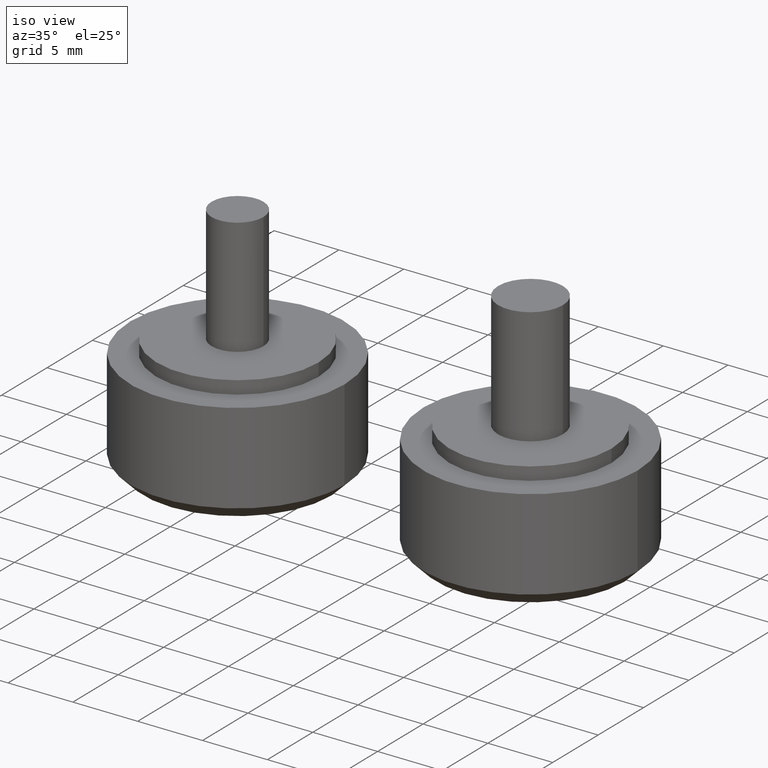
[diagram: clean part render]
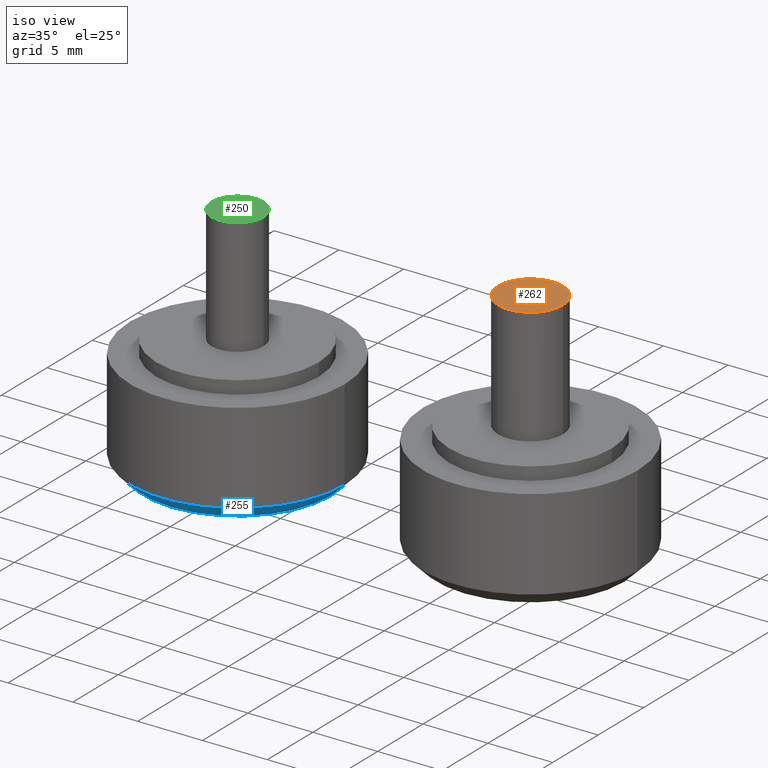
[diagram: same view with three faces highlighted in distinct colors, each labeled with its STEP entity id]
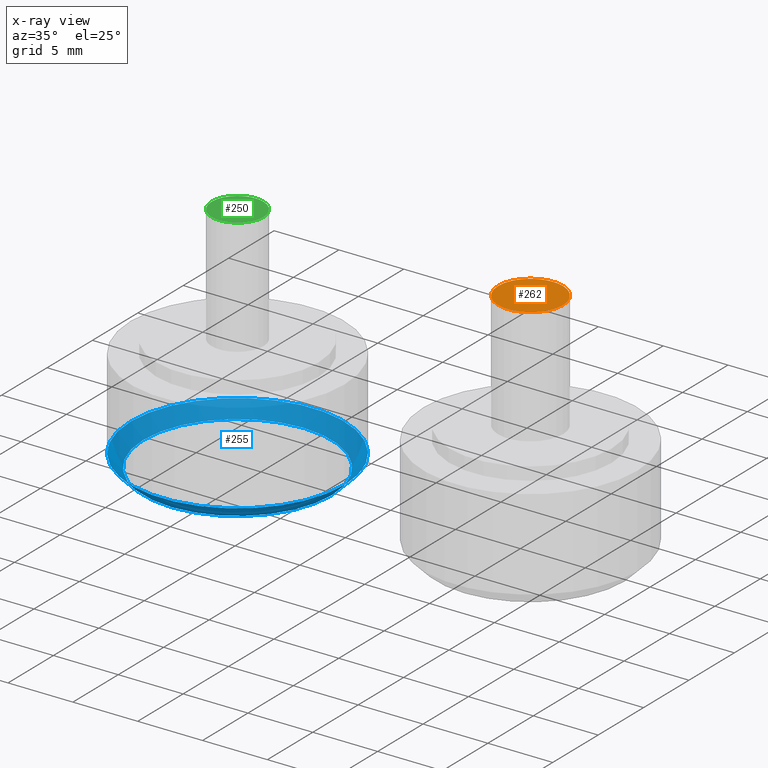
[diagram: x-ray of the same camera — body ghosted, the three highlighted faces saturated]
A machine part, iso view with three faces highlighted in distinct colors.
The next image is the same camera in x-ray (body ghosted, the three faces saturated) — at least one of them is partly hidden behind the body in this view.
Their STEP definitions:

[orange] entity #262 — the highlighted planar face has unit normal (-0, -0, 1).
#39=PLANE('',#303);
#78=FACE_OUTER_BOUND('',#113,.T.);
#113=EDGE_LOOP('',(#223));
#144=CIRCLE('',#301,2.5);
#166=VERTEX_POINT('',#465);
#188=EDGE_CURVE('',#166,#166,#144,.T.);
#223=ORIENTED_EDGE('',*,*,#188,.T.);
#262=ADVANCED_FACE('',(#78),#39,.T.);
#301=AXIS2_PLACEMENT_3D('',#466,#378,#379);
#303=AXIS2_PLACEMENT_3D('',#469,#382,#383);
#378=DIRECTION('center_axis',(0.,0.,1.));
#379=DIRECTION('ref_axis',(-1.,0.,0.));
#382=DIRECTION('center_axis',(0.,0.,1.));
#383=DIRECTION('ref_axis',(1.,0.,0.));
#465=CARTESIAN_POINT('',(2.5,3.06161699786838E-16,18.));
#466=CARTESIAN_POINT('Origin',(0.,0.,18.));
#469=CARTESIAN_POINT('Origin',(-1.18032060367666E-16,4.62592926927149E-17,
18.));

[blue] entity #255 — the highlighted conical surface has half-angle 45 deg.
#27=CONICAL_SURFACE('',#289,7.75,45.);
#50=FACE_BOUND('',#101,.T.);
#71=FACE_OUTER_BOUND('',#100,.T.);
#100=EDGE_LOOP('',(#210));
#101=EDGE_LOOP('',(#211));
#139=CIRCLE('',#287,7.25);
#140=CIRCLE('',#290,8.25);
#161=VERTEX_POINT('',#446);
#162=VERTEX_POINT('',#450);
#183=EDGE_CURVE('',#161,#161,#139,.T.);
#184=EDGE_CURVE('',#162,#162,#140,.T.);
#210=ORIENTED_EDGE('',*,*,#184,.T.);
#211=ORIENTED_EDGE('',*,*,#183,.T.);
#255=ADVANCED_FACE('',(#71,#50),#27,.T.);
#287=AXIS2_PLACEMENT_3D('',#447,#350,#351);
#289=AXIS2_PLACEMENT_3D('',#449,#354,#355);
#290=AXIS2_PLACEMENT_3D('',#451,#356,#357);
#350=DIRECTION('center_axis',(0.,0.,1.));
#351=DIRECTION('ref_axis',(-1.,0.,0.));
#354=DIRECTION('center_axis',(0.,0.,1.));
#355=DIRECTION('ref_axis',(-1.,0.,0.));
#356=DIRECTION('center_axis',(0.,0.,-1.));
#357=DIRECTION('ref_axis',(-1.,0.,0.));
#446=CARTESIAN_POINT('',(7.25,8.87868929381831E-16,0.));
#447=CARTESIAN_POINT('Origin',(0.,0.,0.));
#449=CARTESIAN_POINT('Origin',(0.,0.,0.5));
#450=CARTESIAN_POINT('',(8.25,-1.01033360929657E-15,1.));
#451=CARTESIAN_POINT('Origin',(0.,0.,1.));

[green] entity #250 — the highlighted planar face has unit normal (0, 0, 1).
#33=PLANE('',#279);
#66=FACE_OUTER_BOUND('',#91,.T.);
#91=EDGE_LOOP('',(#201));
#133=CIRCLE('',#277,2.);
#155=VERTEX_POINT('',#430);
#177=EDGE_CURVE('',#155,#155,#133,.T.);
#201=ORIENTED_EDGE('',*,*,#177,.T.);
#250=ADVANCED_FACE('',(#66),#33,.T.);
#277=AXIS2_PLACEMENT_3D('',#431,#330,#331);
#279=AXIS2_PLACEMENT_3D('',#434,#334,#335);
#330=DIRECTION('center_axis',(0.,0.,1.));
#331=DIRECTION('ref_axis',(-1.,0.,0.));
#334=DIRECTION('center_axis',(0.,0.,1.));
#335=DIRECTION('ref_axis',(1.,0.,0.));
#430=CARTESIAN_POINT('',(2.,2.44929359829471E-16,18.));
#431=CARTESIAN_POINT('Origin',(0.,0.,18.));
#434=CARTESIAN_POINT('Origin',(-1.36059011717576E-16,0.,18.));